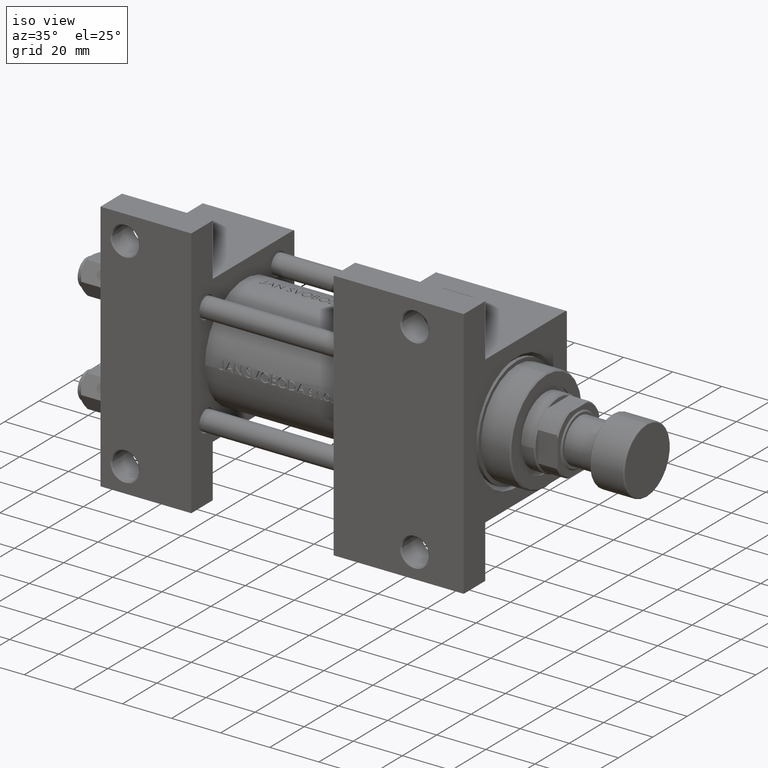
[diagram: clean part render]
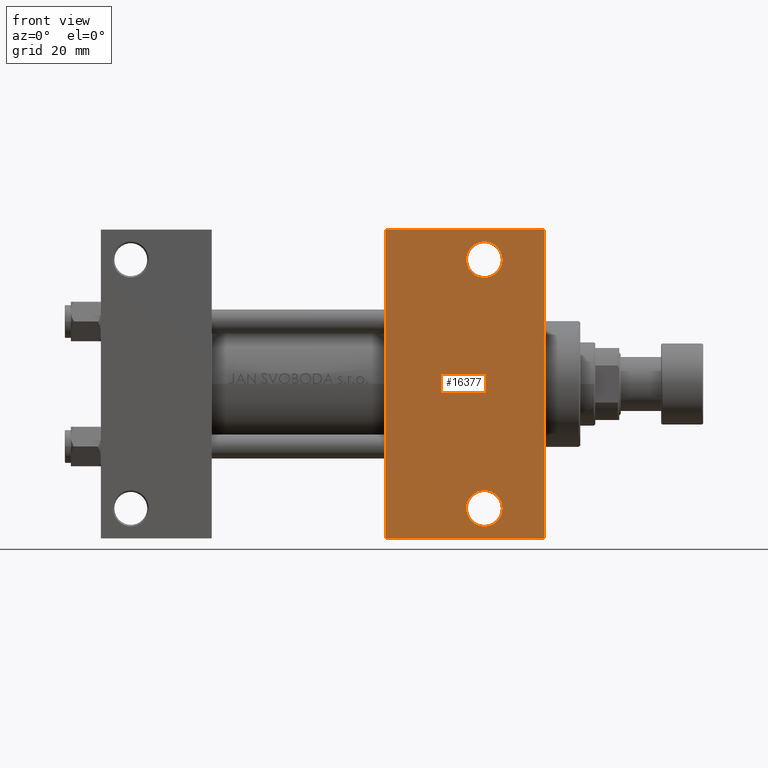
[diagram: tour spotlight — one face highlighted and labeled with its STEP entity id]
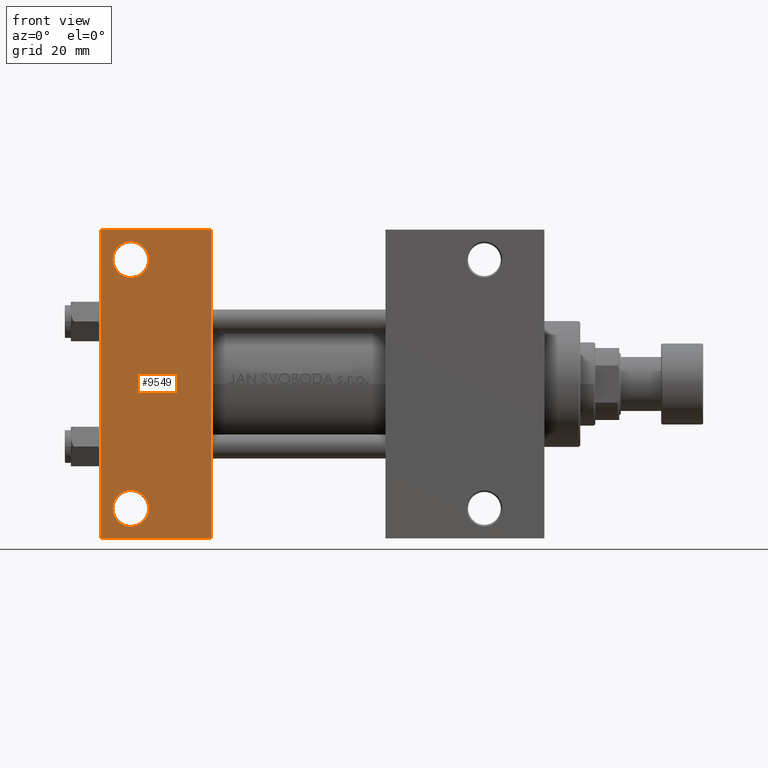
[diagram: tour spotlight — one face highlighted and labeled with its STEP entity id]
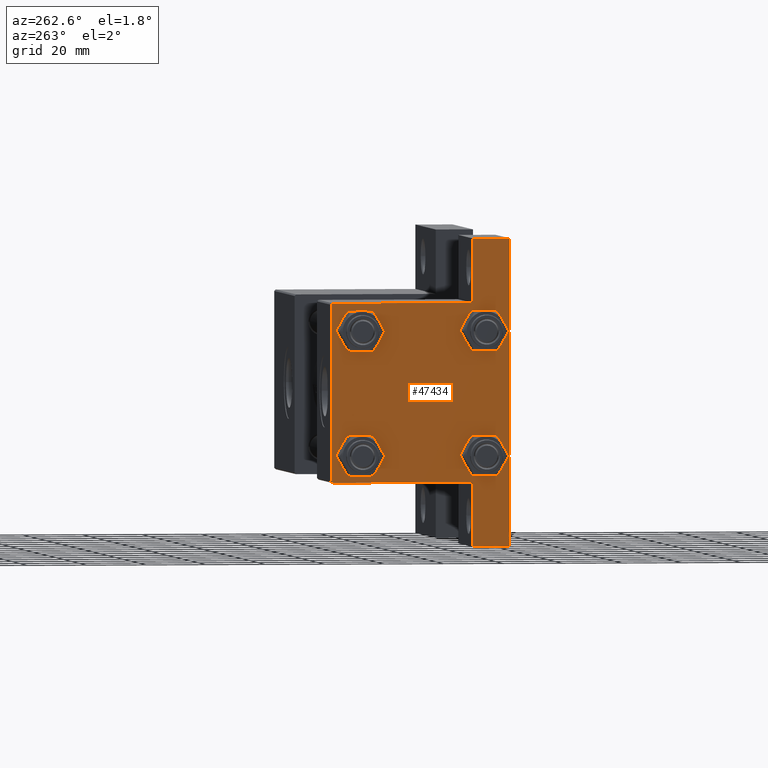
[diagram: tour spotlight — one face highlighted and labeled with its STEP entity id]
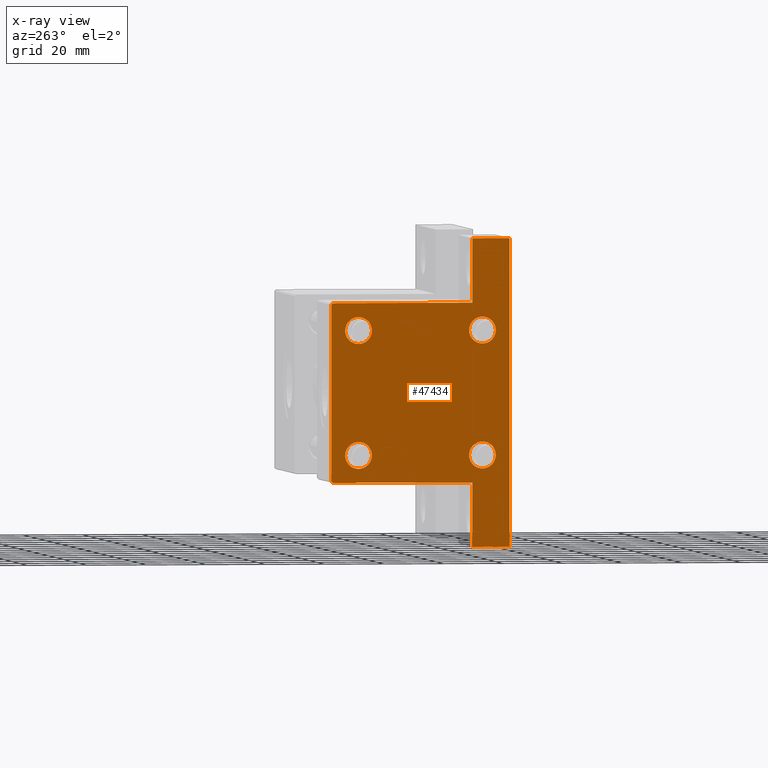
[diagram: x-ray of the same camera — body ghosted, this tour face saturated]
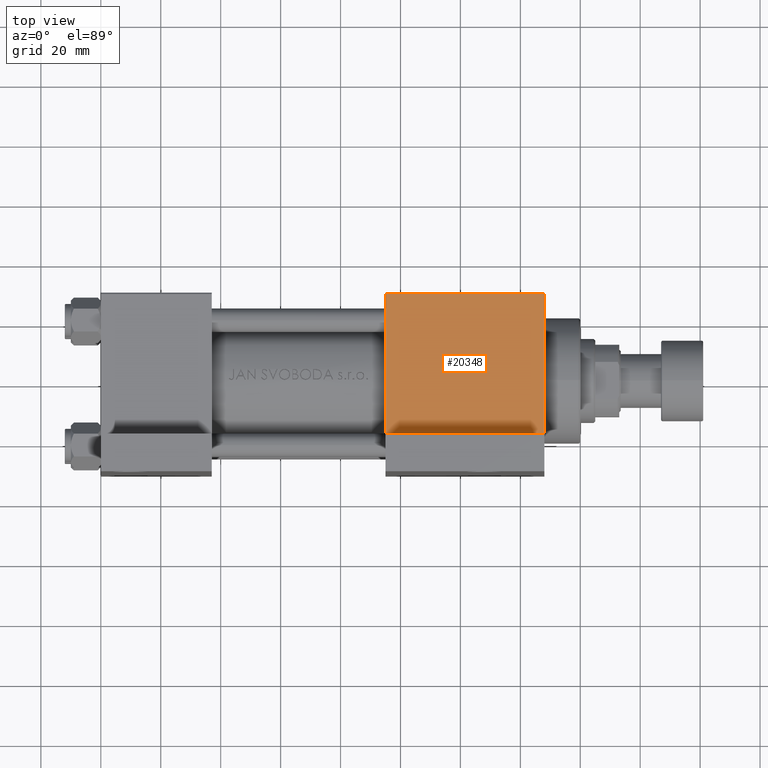
[diagram: tour spotlight — one face highlighted and labeled with its STEP entity id]
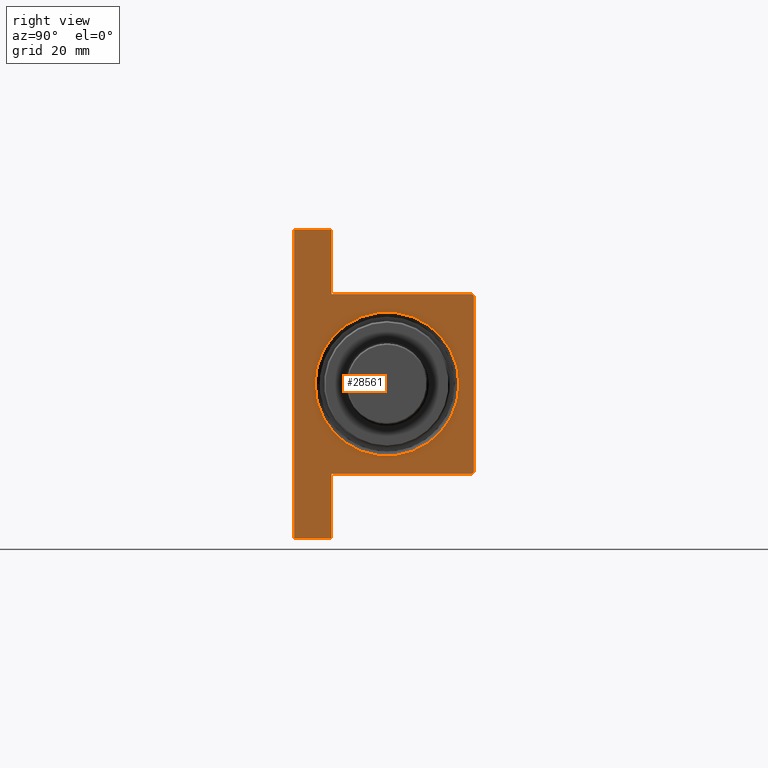
[diagram: tour spotlight — one face highlighted and labeled with its STEP entity id]
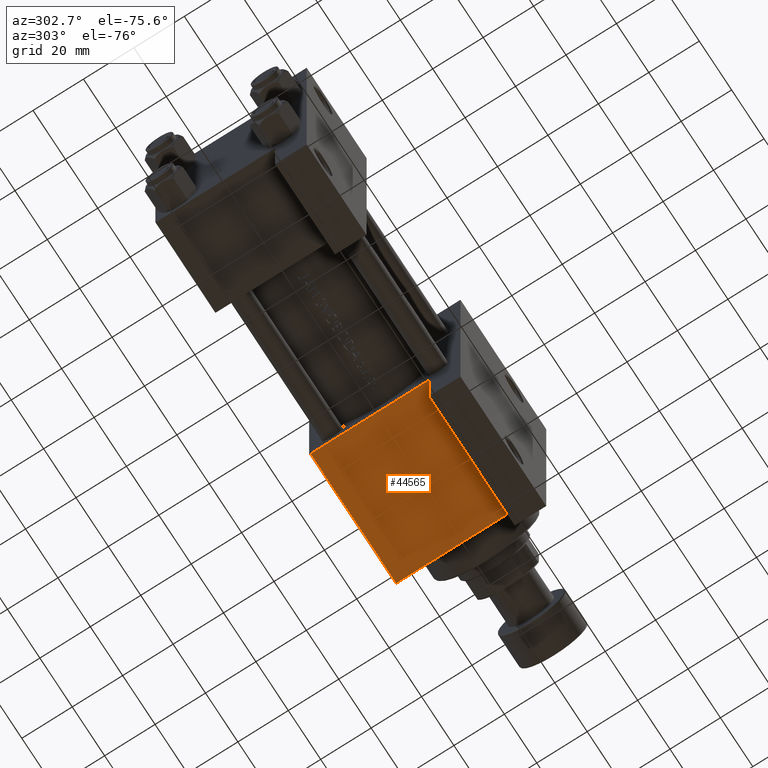
[diagram: tour spotlight — one face highlighted and labeled with its STEP entity id]
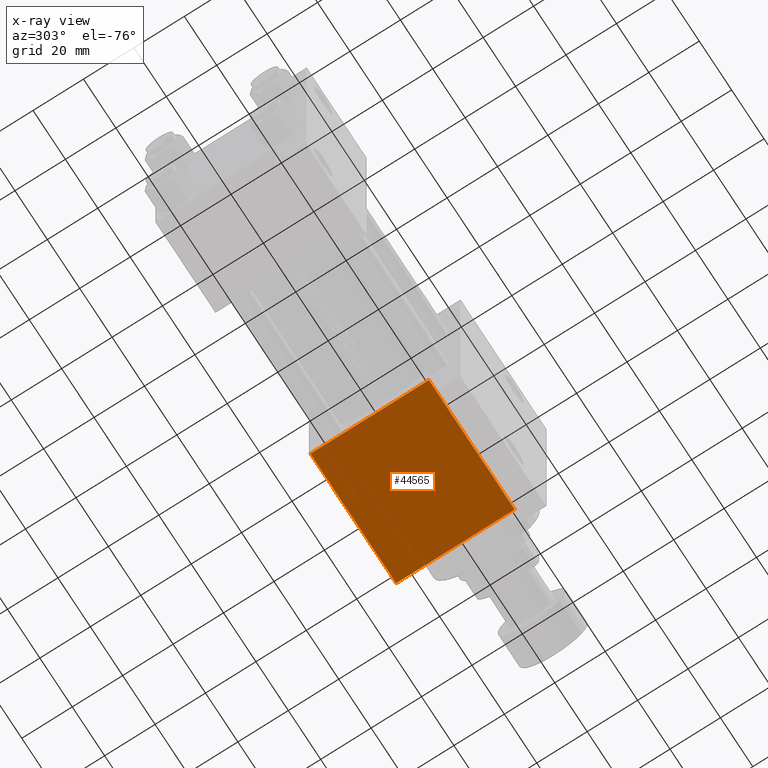
[diagram: x-ray of the same camera — body ghosted, this tour face saturated]
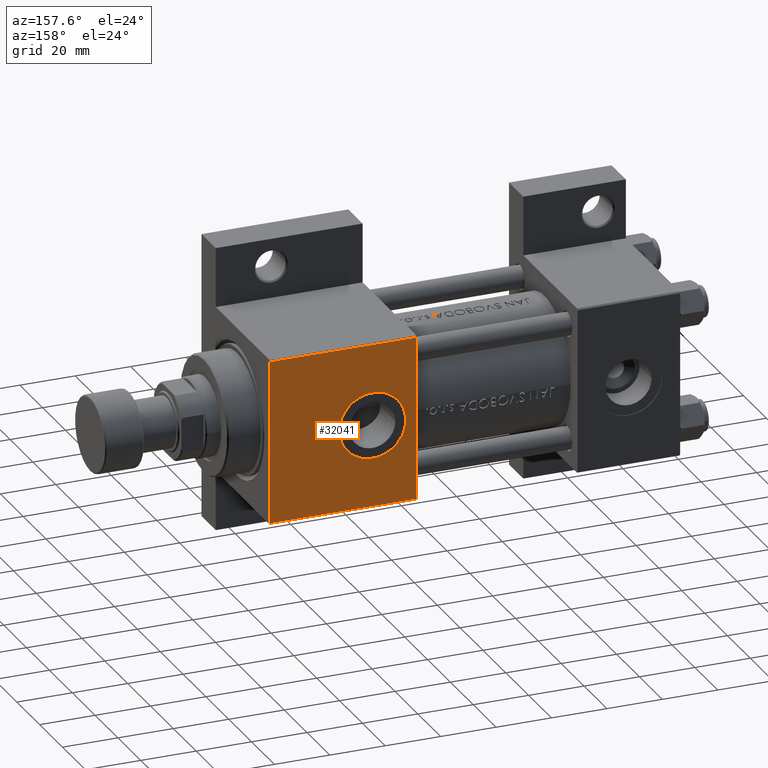
[diagram: tour spotlight — one face highlighted and labeled with its STEP entity id]
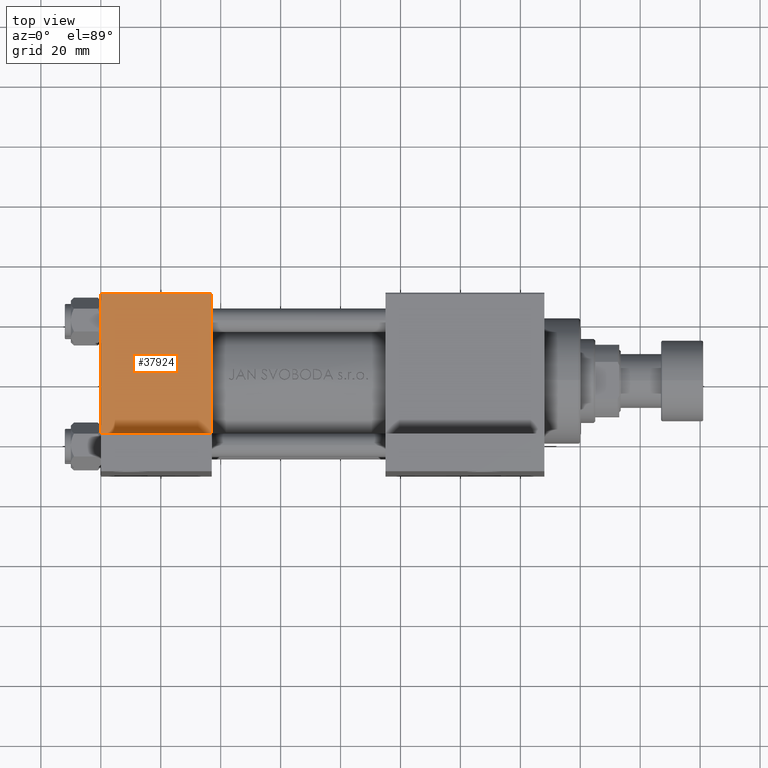
[diagram: tour spotlight — one face highlighted and labeled with its STEP entity id]
A machine part: a face-by-face anatomy tour. The part has 1104 B-rep faces; the first image is the clean iso view, then the 8 largest visible faces are spotlighted one at a time (largest first), each with its STEP entity span.

Face 1 — front view, entity #16377. In plain terms, the highlighted planar face has unit normal (0, -1, -0).
Definition (entity closure, byte-faithful):
#1604 = AXIS2_PLACEMENT_3D ( 'NONE', #8471, #26239, #33771 ) ;
#2140 = CARTESIAN_POINT ( 'NONE',  ( 128.0000000000000000, 41.49999999999999289, -29.99999999999999289 ) ) ;
#2278 = DIRECTION ( 'NONE',  ( 0.000000000000000000, 1.000000000000000000, 0.000000000000000000 ) ) ;
#4718 = VECTOR ( 'NONE', #4914, 1000.000000000000000 ) ;
#4914 = DIRECTION ( 'NONE',  ( 0.000000000000000000, -1.000000000000000000, -1.156482317317871478E-16 ) ) ;
#5068 = DIRECTION ( 'NONE',  ( -0.000000000000000000, -1.156482317317871478E-16, 1.000000000000000000 ) ) ;
#5266 = LINE ( 'NONE', #23737, #39991 ) ;
#6525 = LINE ( 'NONE', #35725, #31455 ) ;
#7785 = VERTEX_POINT ( 'NONE', #20218 ) ;
#8068 = EDGE_CURVE ( 'NONE', #39612, #48022, #17044, .T. ) ;
#8200 = LINE ( 'NONE', #23034, #17178 ) ;
#8471 = CARTESIAN_POINT ( 'NONE',  ( 148.0000000000000000, 30.00000000000000000, -29.99999999999999289 ) ) ;
#8980 = ORIENTED_EDGE ( 'NONE', *, *, #8068, .T. ) ;
#9446 = AXIS2_PLACEMENT_3D ( 'NONE', #42798, #24806, #24323 ) ;
#10190 = DIRECTION ( 'NONE',  ( 0.000000000000000000, -1.000000000000000000, -1.156482317317871478E-16 ) ) ;
#10508 = CARTESIAN_POINT ( 'NONE',  ( 128.0000000000000000, -41.49999999999999289, -30.00000000000000000 ) ) ;
#10924 = EDGE_LOOP ( 'NONE', ( #8980, #39905 ) ) ;
#12710 = CARTESIAN_POINT ( 'NONE',  ( 95.00000000000000000, 30.00000000000000000, -29.99999999999999289 ) ) ;
#13159 = AXIS2_PLACEMENT_3D ( 'NONE', #2140, #5068, #16504 ) ;
#13880 = CARTESIAN_POINT ( 'NONE',  ( 94.99999999999998579, -51.50000000000000711, -29.99999999999999645 ) ) ;
#14833 = VERTEX_POINT ( 'NONE', #47746 ) ;
#15094 = EDGE_LOOP ( 'NONE', ( #35368, #22000 ) ) ;
#15129 = AXIS2_PLACEMENT_3D ( 'NONE', #10508, #33105, #44273 ) ;
#16377 = ADVANCED_FACE ( 'NONE', ( #30596, #38131, #26480 ), #23056, .T. ) ;
#16504 = DIRECTION ( 'NONE',  ( 0.000000000000000000, 1.000000000000000000, 0.000000000000000000 ) ) ;
#16758 = CARTESIAN_POINT ( 'NONE',  ( 133.9995000000000118, -41.49999999999999289, -30.00000000000000000 ) ) ;
#17011 = EDGE_CURVE ( 'NONE', #45514, #19906, #38219, .T. ) ;
#17044 = CIRCLE ( 'NONE', #13159, 5.999499999999990507 ) ;
#17178 = VECTOR ( 'NONE', #37869, 1000.000000000000000 ) ;
#17587 = EDGE_CURVE ( 'NONE', #45514, #18301, #8200, .T. ) ;
#18181 = EDGE_LOOP ( 'NONE', ( #31921, #42032, #39426, #24637 ) ) ;
#18301 = VERTEX_POINT ( 'NONE', #23585 ) ;
#18395 = EDGE_CURVE ( 'NONE', #7785, #20842, #42813, .T. ) ;
#19601 = DIRECTION ( 'NONE',  ( -1.000000000000000000, -0.000000000000000000, -0.000000000000000000 ) ) ;
#19906 = VERTEX_POINT ( 'NONE', #13880 ) ;
#20218 = CARTESIAN_POINT ( 'NONE',  ( 122.0004999999999882, -41.49999999999999289, -30.00000000000000000 ) ) ;
#20740 = CARTESIAN_POINT ( 'NONE',  ( 95.00000000000000000, 51.50000000000000711, -29.99999999999999645 ) ) ;
#20810 = CIRCLE ( 'NONE', #22324, 5.999499999999990507 ) ;
#20842 = VERTEX_POINT ( 'NONE', #16758 ) ;
#22000 = ORIENTED_EDGE ( 'NONE', *, *, #30591, .T. ) ;
#22324 = AXIS2_PLACEMENT_3D ( 'NONE', #39006, #46541, #2278 ) ;
#23034 = CARTESIAN_POINT ( 'NONE',  ( 95.00000000000000000, 51.50000000000000711, -29.99999999999999645 ) ) ;
#23056 = PLANE ( 'NONE',  #1604 ) ;
#23585 = CARTESIAN_POINT ( 'NONE',  ( 148.0000000000000000, 51.49999999999999289, -29.99999999999999645 ) ) ;
#23737 = CARTESIAN_POINT ( 'NONE',  ( 94.99999999999998579, -51.50000000000000711, -29.99999999999999645 ) ) ;
#24323 = DIRECTION ( 'NONE',  ( 0.000000000000000000, 1.000000000000000000, 0.000000000000000000 ) ) ;
#24637 = ORIENTED_EDGE ( 'NONE', *, *, #28088, .T. ) ;
#24806 = DIRECTION ( 'NONE',  ( -0.000000000000000000, -1.156482317317871478E-16, 1.000000000000000000 ) ) ;
#26239 = DIRECTION ( 'NONE',  ( 0.000000000000000000, 1.156482317317871478E-16, -1.000000000000000000 ) ) ;
#26480 = FACE_OUTER_BOUND ( 'NONE', #18181, .T. ) ;
#28088 = EDGE_CURVE ( 'NONE', #14833, #19906, #5266, .T. ) ;
#30591 = EDGE_CURVE ( 'NONE', #20842, #7785, #35345, .T. ) ;
#30596 = FACE_BOUND ( 'NONE', #10924, .T. ) ;
#30956 = EDGE_CURVE ( 'NONE', #18301, #14833, #6525, .T. ) ;
#31455 = VECTOR ( 'NONE', #10190, 1000.000000000000000 ) ;
#31921 = ORIENTED_EDGE ( 'NONE', *, *, #17011, .F. ) ;
#33105 = DIRECTION ( 'NONE',  ( -0.000000000000000000, -1.156482317317871478E-16, 1.000000000000000000 ) ) ;
#33771 = DIRECTION ( 'NONE',  ( 0.000000000000000000, 1.000000000000000000, 1.156482317317871478E-16 ) ) ;
#35345 = CIRCLE ( 'NONE', #15129, 5.999500000000018929 ) ;
#35368 = ORIENTED_EDGE ( 'NONE', *, *, #18395, .T. ) ;
#35725 = CARTESIAN_POINT ( 'NONE',  ( 148.0000000000000000, 30.00000000000000000, -29.99999999999999289 ) ) ;
#37433 = EDGE_CURVE ( 'NONE', #48022, #39612, #20810, .T. ) ;
#37869 = DIRECTION ( 'NONE',  ( 1.000000000000000000, -2.618450529776313247E-16, 0.000000000000000000 ) ) ;
#38131 = FACE_BOUND ( 'NONE', #15094, .T. ) ;
#38219 = LINE ( 'NONE', #12710, #4718 ) ;
#39006 = CARTESIAN_POINT ( 'NONE',  ( 128.0000000000000000, 41.49999999999999289, -29.99999999999999289 ) ) ;
#39426 = ORIENTED_EDGE ( 'NONE', *, *, #30956, .T. ) ;
#39612 = VERTEX_POINT ( 'NONE', #43171 ) ;
#39905 = ORIENTED_EDGE ( 'NONE', *, *, #37433, .T. ) ;
#39991 = VECTOR ( 'NONE', #19601, 1000.000000000000000 ) ;
#42032 = ORIENTED_EDGE ( 'NONE', *, *, #17587, .T. ) ;
#42798 = CARTESIAN_POINT ( 'NONE',  ( 128.0000000000000000, -41.49999999999999289, -30.00000000000000000 ) ) ;
#42813 = CIRCLE ( 'NONE', #9446, 5.999500000000018929 ) ;
#43171 = CARTESIAN_POINT ( 'NONE',  ( 122.0005000000000166, 41.49999999999999289, -29.99999999999999289 ) ) ;
#44273 = DIRECTION ( 'NONE',  ( 0.000000000000000000, 1.000000000000000000, 0.000000000000000000 ) ) ;
#45514 = VERTEX_POINT ( 'NONE', #20740 ) ;
#46541 = DIRECTION ( 'NONE',  ( -0.000000000000000000, -1.156482317317871478E-16, 1.000000000000000000 ) ) ;
#47746 = CARTESIAN_POINT ( 'NONE',  ( 148.0000000000000000, -51.50000000000000711, -29.99999999999999645 ) ) ;
#47945 = CARTESIAN_POINT ( 'NONE',  ( 133.9994999999999834, 41.49999999999999289, -29.99999999999999289 ) ) ;
#48022 = VERTEX_POINT ( 'NONE', #47945 ) ;

Face 2 — front view, entity #9549. In plain terms, the highlighted planar face has unit normal (0, -1, -0).
Definition (entity closure, byte-faithful):
#631 = EDGE_CURVE ( 'NONE', #45929, #41785, #28489, .T. ) ;
#887 = EDGE_LOOP ( 'NONE', ( #30150, #36711 ) ) ;
#2609 = EDGE_LOOP ( 'NONE', ( #5089, #20758, #38636, #11697 ) ) ;
#3017 = CIRCLE ( 'NONE', #7700, 5.999499999999990507 ) ;
#4626 = AXIS2_PLACEMENT_3D ( 'NONE', #36811, #37525, #14448 ) ;
#5008 = EDGE_CURVE ( 'NONE', #45929, #39895, #35910, .T. ) ;
#5089 = ORIENTED_EDGE ( 'NONE', *, *, #631, .F. ) ;
#6002 = DIRECTION ( 'NONE',  ( -0.000000000000000000, -1.156482317317871725E-16, 1.000000000000000000 ) ) ;
#6283 = CARTESIAN_POINT ( 'NONE',  ( 15.99950000000001715, -41.50000000000000711, -30.00000000000000711 ) ) ;
#7700 = AXIS2_PLACEMENT_3D ( 'NONE', #16699, #6002, #39780 ) ;
#7838 = VERTEX_POINT ( 'NONE', #35044 ) ;
#8090 = PLANE ( 'NONE',  #4626 ) ;
#8522 = EDGE_CURVE ( 'NONE', #7838, #12424, #33339, .T. ) ;
#8918 = CIRCLE ( 'NONE', #14374, 5.999500000000018929 ) ;
#9549 = ADVANCED_FACE ( 'NONE', ( #22222, #18812, #41393 ), #8090, .T. ) ;
#9992 = CARTESIAN_POINT ( 'NONE',  ( 3.977209754999747208E-16, -51.49999999999999289, -29.99999999999999289 ) ) ;
#10039 = LINE ( 'NONE', #35816, #46934 ) ;
#10354 = DIRECTION ( 'NONE',  ( 0.000000000000000000, 1.000000000000000000, 0.000000000000000000 ) ) ;
#10432 = ORIENTED_EDGE ( 'NONE', *, *, #30628, .T. ) ;
#11697 = ORIENTED_EDGE ( 'NONE', *, *, #13591, .T. ) ;
#12406 = VECTOR ( 'NONE', #46594, 1000.000000000000000 ) ;
#12424 = VERTEX_POINT ( 'NONE', #35228 ) ;
#13430 = DIRECTION ( 'NONE',  ( 0.000000000000000000, -1.000000000000000000, -1.156482317317871725E-16 ) ) ;
#13591 = EDGE_CURVE ( 'NONE', #18087, #41785, #42199, .T. ) ;
#14374 = AXIS2_PLACEMENT_3D ( 'NONE', #23346, #38176, #19218 ) ;
#14448 = DIRECTION ( 'NONE',  ( 0.000000000000000000, 1.000000000000000000, 1.156482317317871725E-16 ) ) ;
#16699 = CARTESIAN_POINT ( 'NONE',  ( 9.999999999999998224, 41.49999999999997868, -30.00000000000000000 ) ) ;
#16936 = CARTESIAN_POINT ( 'NONE',  ( 3.977209754999747208E-16, -51.49999999999999289, -29.99999999999999289 ) ) ;
#17179 = DIRECTION ( 'NONE',  ( -0.000000000000000000, -1.156482317317871725E-16, 1.000000000000000000 ) ) ;
#17566 = CARTESIAN_POINT ( 'NONE',  ( 37.00000000000000000, -51.50000000000000000, -29.99999999999999289 ) ) ;
#17619 = DIRECTION ( 'NONE',  ( -0.000000000000000000, -1.156482317317871725E-16, 1.000000000000000000 ) ) ;
#17858 = DIRECTION ( 'NONE',  ( 0.000000000000000000, 1.000000000000000000, 0.000000000000000000 ) ) ;
#18087 = VERTEX_POINT ( 'NONE', #17566 ) ;
#18812 = FACE_BOUND ( 'NONE', #30100, .T. ) ;
#19218 = DIRECTION ( 'NONE',  ( 0.000000000000000000, 1.000000000000000000, 0.000000000000000000 ) ) ;
#20008 = VECTOR ( 'NONE', #43194, 1000.000000000000000 ) ;
#20758 = ORIENTED_EDGE ( 'NONE', *, *, #5008, .T. ) ;
#21637 = CARTESIAN_POINT ( 'NONE',  ( 1.301158300671771401E-14, 51.50000000000000711, -30.00000000000001421 ) ) ;
#22222 = FACE_BOUND ( 'NONE', #887, .T. ) ;
#23346 = CARTESIAN_POINT ( 'NONE',  ( 9.999999999999998224, -41.50000000000000711, -30.00000000000000711 ) ) ;
#25103 = DIRECTION ( 'NONE',  ( 0.000000000000000000, -1.000000000000000000, -1.156482317317871725E-16 ) ) ;
#26687 = EDGE_CURVE ( 'NONE', #39895, #18087, #10039, .T. ) ;
#28489 = LINE ( 'NONE', #43307, #36954 ) ;
#29033 = CARTESIAN_POINT ( 'NONE',  ( 9.999999999999998224, -41.50000000000000711, -30.00000000000000711 ) ) ;
#30100 = EDGE_LOOP ( 'NONE', ( #43956, #10432 ) ) ;
#30150 = ORIENTED_EDGE ( 'NONE', *, *, #8522, .T. ) ;
#30628 = EDGE_CURVE ( 'NONE', #42013, #46340, #8918, .T. ) ;
#32179 = CARTESIAN_POINT ( 'NONE',  ( 37.00000000000001421, 51.50000000000000000, -30.00000000000001421 ) ) ;
#33339 = CIRCLE ( 'NONE', #34087, 5.999499999999990507 ) ;
#34087 = AXIS2_PLACEMENT_3D ( 'NONE', #46825, #17179, #10354 ) ;
#35044 = CARTESIAN_POINT ( 'NONE',  ( 4.000500000000007716, 41.49999999999997868, -30.00000000000000000 ) ) ;
#35228 = CARTESIAN_POINT ( 'NONE',  ( 15.99949999999998873, 41.49999999999997868, -30.00000000000000000 ) ) ;
#35329 = CARTESIAN_POINT ( 'NONE',  ( 4.000499999999980183, -41.50000000000000711, -30.00000000000000711 ) ) ;
#35816 = CARTESIAN_POINT ( 'NONE',  ( 37.00000000000000000, 29.99999999999999289, -30.00000000000000000 ) ) ;
#35910 = LINE ( 'NONE', #42464, #20008 ) ;
#36711 = ORIENTED_EDGE ( 'NONE', *, *, #41332, .T. ) ;
#36811 = CARTESIAN_POINT ( 'NONE',  ( 37.00000000000000000, 29.99999999999999289, -30.00000000000000000 ) ) ;
#36954 = VECTOR ( 'NONE', #13430, 1000.000000000000000 ) ;
#37525 = DIRECTION ( 'NONE',  ( 0.000000000000000000, 1.156482317317871725E-16, -1.000000000000000000 ) ) ;
#38176 = DIRECTION ( 'NONE',  ( -0.000000000000000000, -1.156482317317871725E-16, 1.000000000000000000 ) ) ;
#38636 = ORIENTED_EDGE ( 'NONE', *, *, #26687, .T. ) ;
#39780 = DIRECTION ( 'NONE',  ( 0.000000000000000000, 1.000000000000000000, 0.000000000000000000 ) ) ;
#39895 = VERTEX_POINT ( 'NONE', #32179 ) ;
#41332 = EDGE_CURVE ( 'NONE', #12424, #7838, #3017, .T. ) ;
#41393 = FACE_OUTER_BOUND ( 'NONE', #2609, .T. ) ;
#41785 = VERTEX_POINT ( 'NONE', #9992 ) ;
#42013 = VERTEX_POINT ( 'NONE', #6283 ) ;
#42199 = LINE ( 'NONE', #16936, #12406 ) ;
#42464 = CARTESIAN_POINT ( 'NONE',  ( 1.301158300671771401E-14, 51.50000000000000711, -30.00000000000001421 ) ) ;
#42558 = AXIS2_PLACEMENT_3D ( 'NONE', #29033, #17619, #17858 ) ;
#43194 = DIRECTION ( 'NONE',  ( 1.000000000000000000, -1.875376730785737473E-16, 0.000000000000000000 ) ) ;
#43307 = CARTESIAN_POINT ( 'NONE',  ( 0.000000000000000000, 29.99999999999999289, -30.00000000000000000 ) ) ;
#43956 = ORIENTED_EDGE ( 'NONE', *, *, #45230, .T. ) ;
#45230 = EDGE_CURVE ( 'NONE', #46340, #42013, #45621, .T. ) ;
#45621 = CIRCLE ( 'NONE', #42558, 5.999500000000018929 ) ;
#45929 = VERTEX_POINT ( 'NONE', #21637 ) ;
#46340 = VERTEX_POINT ( 'NONE', #35329 ) ;
#46594 = DIRECTION ( 'NONE',  ( -1.000000000000000000, 1.875376730785737473E-16, -0.000000000000000000 ) ) ;
#46825 = CARTESIAN_POINT ( 'NONE',  ( 9.999999999999998224, 41.49999999999997868, -30.00000000000000000 ) ) ;
#46934 = VECTOR ( 'NONE', #25103, 1000.000000000000000 ) ;

Face 3 — auxiliary view, entity #47434. An x-ray twin of the same camera follows (body ghosted, this face saturated) — the face is partly hidden behind the body. In plain terms, the highlighted planar face has unit normal (-1, 0, -0).
Definition (entity closure, byte-faithful):
#5 = CIRCLE ( 'NONE', #20213, 4.500000000000017764 ) ;
#631 = EDGE_CURVE ( 'NONE', #45929, #41785, #28489, .T. ) ;
#2297 = VERTEX_POINT ( 'NONE', #8694 ) ;
#2607 = DIRECTION ( 'NONE',  ( -1.000000000000000000, 0.000000000000000000, -0.000000000000000000 ) ) ;
#3008 = ORIENTED_EDGE ( 'NONE', *, *, #5912, .T. ) ;
#3467 = ORIENTED_EDGE ( 'NONE', *, *, #9261, .T. ) ;
#3602 = VERTEX_POINT ( 'NONE', #40599 ) ;
#3799 = AXIS2_PLACEMENT_3D ( 'NONE', #18887, #7705, #11835 ) ;
#3878 = VECTOR ( 'NONE', #15921, 1000.000000000000114 ) ;
#4339 = CIRCLE ( 'NONE', #41591, 4.500000000000017764 ) ;
#4416 = ORIENTED_EDGE ( 'NONE', *, *, #37162, .T. ) ;
#4431 = AXIS2_PLACEMENT_3D ( 'NONE', #23228, #11825, #20084 ) ;
#4485 = VERTEX_POINT ( 'NONE', #44367 ) ;
#4666 = VERTEX_POINT ( 'NONE', #46487 ) ;
#4895 = CARTESIAN_POINT ( 'NONE',  ( 0.000000000000000000, 20.84999999999999787, -20.85000000000000142 ) ) ;
#4969 = EDGE_CURVE ( 'NONE', #33741, #3602, #24964, .T. ) ;
#5040 = DIRECTION ( 'NONE',  ( 1.000000000000000000, -0.000000000000000000, 0.000000000000000000 ) ) ;
#5242 = CIRCLE ( 'NONE', #46406, 4.500000000000017764 ) ;
#5289 = DIRECTION ( 'NONE',  ( 0.000000000000000000, 0.000000000000000000, 1.000000000000000000 ) ) ;
#5357 = CARTESIAN_POINT ( 'NONE',  ( 1.301158300671771243E-14, 51.50000000000000711, -17.49999999999999645 ) ) ;
#5384 = CARTESIAN_POINT ( 'NONE',  ( 3.977209754999747208E-16, -51.49999999999999289, -17.49999999999999645 ) ) ;
#5808 = VECTOR ( 'NONE', #26042, 1000.000000000000000 ) ;
#5912 = EDGE_CURVE ( 'NONE', #27201, #12946, #40241, .T. ) ;
#6479 = DIRECTION ( 'NONE',  ( -2.966638294954184077E-16, -1.000000000000000000, 0.000000000000000000 ) ) ;
#7705 = DIRECTION ( 'NONE',  ( 1.000000000000000000, -0.000000000000000000, 0.000000000000000000 ) ) ;
#7823 = VERTEX_POINT ( 'NONE', #5384 ) ;
#8074 = CARTESIAN_POINT ( 'NONE',  ( 0.000000000000000000, -20.84999999999999076, -16.34999999999998721 ) ) ;
#8246 = ORIENTED_EDGE ( 'NONE', *, *, #10110, .F. ) ;
#8298 = EDGE_CURVE ( 'NONE', #44559, #2297, #27898, .T. ) ;
#8694 = CARTESIAN_POINT ( 'NONE',  ( 0.000000000000000000, -20.84999999999999076, -25.35000000000002274 ) ) ;
#9170 = CIRCLE ( 'NONE', #43346, 4.500000000000017764 ) ;
#9261 = EDGE_CURVE ( 'NONE', #33099, #44861, #11343, .T. ) ;
#9778 = CARTESIAN_POINT ( 'NONE',  ( 0.000000000000000000, 29.99999999999999289, 29.50000000000000000 ) ) ;
#9923 = PLANE ( 'NONE',  #30814 ) ;
#9992 = CARTESIAN_POINT ( 'NONE',  ( 3.977209754999747208E-16, -51.49999999999999289, -29.99999999999999289 ) ) ;
#10015 = VERTEX_POINT ( 'NONE', #36163 ) ;
#10110 = EDGE_CURVE ( 'NONE', #7823, #41785, #17931, .T. ) ;
#10633 = FACE_BOUND ( 'NONE', #12825, .T. ) ;
#11170 = EDGE_LOOP ( 'NONE', ( #33244, #12772, #43117, #3467, #27583, #47729, #30481, #47468, #8246, #37257 ) ) ;
#11343 = LINE ( 'NONE', #12043, #3878 ) ;
#11825 = DIRECTION ( 'NONE',  ( 1.000000000000000000, -0.000000000000000000, 0.000000000000000000 ) ) ;
#11835 = DIRECTION ( 'NONE',  ( 0.000000000000000000, 0.000000000000000000, 1.000000000000000000 ) ) ;
#12025 = ORIENTED_EDGE ( 'NONE', *, *, #43495, .T. ) ;
#12043 = CARTESIAN_POINT ( 'NONE',  ( 0.000000000000000000, 29.74999999999999645, 29.74999999999999645 ) ) ;
#12772 = ORIENTED_EDGE ( 'NONE', *, *, #19610, .T. ) ;
#12825 = EDGE_LOOP ( 'NONE', ( #12025, #33614 ) ) ;
#12946 = VERTEX_POINT ( 'NONE', #31458 ) ;
#13316 = EDGE_LOOP ( 'NONE', ( #20530, #26800 ) ) ;
#13321 = LINE ( 'NONE', #42476, #42401 ) ;
#13430 = DIRECTION ( 'NONE',  ( 0.000000000000000000, -1.000000000000000000, -1.156482317317871725E-16 ) ) ;
#13459 = VERTEX_POINT ( 'NONE', #45601 ) ;
#13649 = LINE ( 'NONE', #43772, #41718 ) ;
#13743 = CARTESIAN_POINT ( 'NONE',  ( 0.000000000000000000, -20.84999999999999076, 25.35000000000002274 ) ) ;
#14294 = LINE ( 'NONE', #29127, #40154 ) ;
#14896 = CARTESIAN_POINT ( 'NONE',  ( 0.000000000000000000, 20.84999999999999787, 20.85000000000000142 ) ) ;
#15921 = DIRECTION ( 'NONE',  ( 0.000000000000000000, 0.7071067811865474617, -0.7071067811865474617 ) ) ;
#15938 = CARTESIAN_POINT ( 'NONE',  ( -0.000000000000000000, -29.74999999999999645, 29.74999999999999645 ) ) ;
#16468 = VECTOR ( 'NONE', #41227, 1000.000000000000114 ) ;
#17456 = DIRECTION ( 'NONE',  ( -0.000000000000000000, 0.000000000000000000, 1.000000000000000000 ) ) ;
#17931 = LINE ( 'NONE', #25699, #44984 ) ;
#18887 = CARTESIAN_POINT ( 'NONE',  ( 0.000000000000000000, -20.84999999999999076, -20.85000000000000497 ) ) ;
#19610 = EDGE_CURVE ( 'NONE', #13459, #10015, #45588, .T. ) ;
#20084 = DIRECTION ( 'NONE',  ( 0.000000000000000000, 0.000000000000000000, 1.000000000000000000 ) ) ;
#20102 = DIRECTION ( 'NONE',  ( 1.000000000000000000, -0.000000000000000000, 0.000000000000000000 ) ) ;
#20213 = AXIS2_PLACEMENT_3D ( 'NONE', #14896, #29730, #21477 ) ;
#20375 = DIRECTION ( 'NONE',  ( 0.000000000000000000, 0.000000000000000000, -1.000000000000000000 ) ) ;
#20530 = ORIENTED_EDGE ( 'NONE', *, *, #8298, .T. ) ;
#20748 = LINE ( 'NONE', #42860, #20848 ) ;
#20848 = VECTOR ( 'NONE', #39923, 1000.000000000000000 ) ;
#21046 = DIRECTION ( 'NONE',  ( 0.000000000000000000, 0.000000000000000000, 1.000000000000000000 ) ) ;
#21118 = CARTESIAN_POINT ( 'NONE',  ( 0.000000000000000000, 0.000000000000000000, 0.000000000000000000 ) ) ;
#21325 = CARTESIAN_POINT ( 'NONE',  ( 0.000000000000000000, 20.84999999999999787, 20.85000000000000142 ) ) ;
#21389 = VERTEX_POINT ( 'NONE', #29801 ) ;
#21477 = DIRECTION ( 'NONE',  ( 0.000000000000000000, 0.000000000000000000, 1.000000000000000000 ) ) ;
#21637 = CARTESIAN_POINT ( 'NONE',  ( 1.301158300671771401E-14, 51.50000000000000711, -30.00000000000001421 ) ) ;
#21928 = LINE ( 'NONE', #22163, #5808 ) ;
#22051 = DIRECTION ( 'NONE',  ( 0.000000000000000000, -1.734723475976807094E-16, -1.000000000000000000 ) ) ;
#22163 = CARTESIAN_POINT ( 'NONE',  ( 3.977209754999743757E-16, -51.49999999999998579, -17.49999999999999645 ) ) ;
#22925 = EDGE_CURVE ( 'NONE', #4666, #47606, #24345, .T. ) ;
#23228 = CARTESIAN_POINT ( 'NONE',  ( 0.000000000000000000, 20.84999999999999787, -20.85000000000000142 ) ) ;
#24345 = CIRCLE ( 'NONE', #44490, 4.500000000000017764 ) ;
#24964 = LINE ( 'NONE', #46120, #34755 ) ;
#25458 = FACE_BOUND ( 'NONE', #13316, .T. ) ;
#25699 = CARTESIAN_POINT ( 'NONE',  ( 3.977209754999747208E-16, -51.49999999999998579, 25.29310692155925366 ) ) ;
#26042 = DIRECTION ( 'NONE',  ( 5.173446966594771078E-17, -1.000000000000000000, 0.000000000000000000 ) ) ;
#26332 = VERTEX_POINT ( 'NONE', #35869 ) ;
#26800 = ORIENTED_EDGE ( 'NONE', *, *, #30136, .T. ) ;
#27201 = VERTEX_POINT ( 'NONE', #13743 ) ;
#27583 = ORIENTED_EDGE ( 'NONE', *, *, #34136, .T. ) ;
#27898 = CIRCLE ( 'NONE', #3799, 4.500000000000017764 ) ;
#28489 = LINE ( 'NONE', #43307, #36954 ) ;
#29107 = FACE_BOUND ( 'NONE', #34047, .T. ) ;
#29127 = CARTESIAN_POINT ( 'NONE',  ( 1.301158300671771401E-14, 51.50000000000001421, 25.29310692155923590 ) ) ;
#29730 = DIRECTION ( 'NONE',  ( 1.000000000000000000, -0.000000000000000000, 0.000000000000000000 ) ) ;
#29801 = CARTESIAN_POINT ( 'NONE',  ( 0.000000000000000000, 20.84999999999999787, 25.35000000000001918 ) ) ;
#30136 = EDGE_CURVE ( 'NONE', #2297, #44559, #4339, .T. ) ;
#30481 = ORIENTED_EDGE ( 'NONE', *, *, #36885, .T. ) ;
#30568 = EDGE_CURVE ( 'NONE', #4485, #7823, #21928, .T. ) ;
#30814 = AXIS2_PLACEMENT_3D ( 'NONE', #21118, #2607, #17456 ) ;
#31458 = CARTESIAN_POINT ( 'NONE',  ( 0.000000000000000000, -20.84999999999999076, 16.34999999999998721 ) ) ;
#31507 = ORIENTED_EDGE ( 'NONE', *, *, #36209, .T. ) ;
#31800 = DIRECTION ( 'NONE',  ( 0.000000000000000000, 0.000000000000000000, 1.000000000000000000 ) ) ;
#31896 = DIRECTION ( 'NONE',  ( 0.000000000000000000, 0.000000000000000000, 1.000000000000000000 ) ) ;
#32456 = DIRECTION ( 'NONE',  ( 1.000000000000000000, -0.000000000000000000, 0.000000000000000000 ) ) ;
#33099 = VERTEX_POINT ( 'NONE', #43384 ) ;
#33244 = ORIENTED_EDGE ( 'NONE', *, *, #37866, .F. ) ;
#33614 = ORIENTED_EDGE ( 'NONE', *, *, #39241, .T. ) ;
#33741 = VERTEX_POINT ( 'NONE', #5357 ) ;
#34047 = EDGE_LOOP ( 'NONE', ( #35401, #31507 ) ) ;
#34136 = EDGE_CURVE ( 'NONE', #44861, #3602, #13321, .T. ) ;
#34755 = VECTOR ( 'NONE', #6479, 1000.000000000000000 ) ;
#34932 = DIRECTION ( 'NONE',  ( 0.000000000000000000, 0.000000000000000000, 1.000000000000000000 ) ) ;
#35401 = ORIENTED_EDGE ( 'NONE', *, *, #22925, .T. ) ;
#35869 = CARTESIAN_POINT ( 'NONE',  ( 0.000000000000000000, 20.84999999999999787, 16.34999999999998366 ) ) ;
#36096 = CARTESIAN_POINT ( 'NONE',  ( 0.000000000000000000, -20.84999999999999076, -20.85000000000000497 ) ) ;
#36150 = DIRECTION ( 'NONE',  ( 1.000000000000000000, -0.000000000000000000, 0.000000000000000000 ) ) ;
#36163 = CARTESIAN_POINT ( 'NONE',  ( 0.000000000000000000, -29.49999999999998579, 29.99999999999999289 ) ) ;
#36209 = EDGE_CURVE ( 'NONE', #47606, #4666, #37037, .T. ) ;
#36885 = EDGE_CURVE ( 'NONE', #33741, #45929, #14294, .T. ) ;
#36954 = VECTOR ( 'NONE', #13430, 1000.000000000000000 ) ;
#37037 = CIRCLE ( 'NONE', #4431, 4.500000000000017764 ) ;
#37162 = EDGE_CURVE ( 'NONE', #12946, #27201, #5242, .T. ) ;
#37257 = ORIENTED_EDGE ( 'NONE', *, *, #30568, .F. ) ;
#37866 = EDGE_CURVE ( 'NONE', #13459, #4485, #13649, .T. ) ;
#38439 = DIRECTION ( 'NONE',  ( 1.000000000000000000, -0.000000000000000000, 0.000000000000000000 ) ) ;
#39241 = EDGE_CURVE ( 'NONE', #26332, #21389, #9170, .T. ) ;
#39923 = DIRECTION ( 'NONE',  ( 0.000000000000000000, -1.000000000000000000, -1.156482317317871725E-16 ) ) ;
#40154 = VECTOR ( 'NONE', #43934, 1000.000000000000000 ) ;
#40241 = CIRCLE ( 'NONE', #40987, 4.500000000000017764 ) ;
#40599 = CARTESIAN_POINT ( 'NONE',  ( 0.000000000000000000, 29.99999999999999289, -17.49999999999999645 ) ) ;
#40750 = CARTESIAN_POINT ( 'NONE',  ( 0.000000000000000000, 20.84999999999999787, -25.35000000000001918 ) ) ;
#40987 = AXIS2_PLACEMENT_3D ( 'NONE', #41982, #5040, #5289 ) ;
#41227 = DIRECTION ( 'NONE',  ( -0.000000000000000000, 0.7071067811865474617, 0.7071067811865474617 ) ) ;
#41591 = AXIS2_PLACEMENT_3D ( 'NONE', #36096, #32456, #21046 ) ;
#41718 = VECTOR ( 'NONE', #47668, 1000.000000000000000 ) ;
#41785 = VERTEX_POINT ( 'NONE', #9992 ) ;
#41982 = CARTESIAN_POINT ( 'NONE',  ( 0.000000000000000000, -20.84999999999999076, 20.85000000000000497 ) ) ;
#42401 = VECTOR ( 'NONE', #20375, 1000.000000000000000 ) ;
#42476 = CARTESIAN_POINT ( 'NONE',  ( 0.000000000000000000, 29.99999999999999289, 30.00000000000000000 ) ) ;
#42860 = CARTESIAN_POINT ( 'NONE',  ( 0.000000000000000000, 29.99999999999999289, 30.00000000000000000 ) ) ;
#43117 = ORIENTED_EDGE ( 'NONE', *, *, #46341, .F. ) ;
#43307 = CARTESIAN_POINT ( 'NONE',  ( 0.000000000000000000, 29.99999999999999289, -30.00000000000000000 ) ) ;
#43346 = AXIS2_PLACEMENT_3D ( 'NONE', #21325, #36150, #31800 ) ;
#43384 = CARTESIAN_POINT ( 'NONE',  ( 0.000000000000000000, 29.49999999999999289, 30.00000000000000000 ) ) ;
#43460 = FACE_BOUND ( 'NONE', #48027, .T. ) ;
#43495 = EDGE_CURVE ( 'NONE', #21389, #26332, #5, .T. ) ;
#43772 = CARTESIAN_POINT ( 'NONE',  ( 0.000000000000000000, -30.00000000000000000, 29.99999999999999289 ) ) ;
#43934 = DIRECTION ( 'NONE',  ( 0.000000000000000000, -1.734723475976807094E-16, -1.000000000000000000 ) ) ;
#44367 = CARTESIAN_POINT ( 'NONE',  ( -7.145701223179007990E-16, -29.99999999999999645, -17.49999999999999645 ) ) ;
#44490 = AXIS2_PLACEMENT_3D ( 'NONE', #4895, #38439, #31896 ) ;
#44559 = VERTEX_POINT ( 'NONE', #8074 ) ;
#44861 = VERTEX_POINT ( 'NONE', #9778 ) ;
#44984 = VECTOR ( 'NONE', #22051, 1000.000000000000000 ) ;
#45588 = LINE ( 'NONE', #15938, #16468 ) ;
#45601 = CARTESIAN_POINT ( 'NONE',  ( 0.000000000000000000, -30.00000000000000000, 29.49999999999999289 ) ) ;
#45929 = VERTEX_POINT ( 'NONE', #21637 ) ;
#46120 = CARTESIAN_POINT ( 'NONE',  ( 1.301158300671771559E-14, 51.50000000000001421, -17.49999999999999645 ) ) ;
#46341 = EDGE_CURVE ( 'NONE', #33099, #10015, #20748, .T. ) ;
#46406 = AXIS2_PLACEMENT_3D ( 'NONE', #46831, #20102, #34932 ) ;
#46487 = CARTESIAN_POINT ( 'NONE',  ( 0.000000000000000000, 20.84999999999999787, -16.34999999999998366 ) ) ;
#46831 = CARTESIAN_POINT ( 'NONE',  ( 0.000000000000000000, -20.84999999999999076, 20.85000000000000497 ) ) ;
#46867 = FACE_OUTER_BOUND ( 'NONE', #11170, .T. ) ;
#47434 = ADVANCED_FACE ( 'NONE', ( #43460, #25458, #29107, #10633, #46867 ), #9923, .T. ) ;
#47468 = ORIENTED_EDGE ( 'NONE', *, *, #631, .T. ) ;
#47606 = VERTEX_POINT ( 'NONE', #40750 ) ;
#47668 = DIRECTION ( 'NONE',  ( 0.000000000000000000, 0.000000000000000000, -1.000000000000000000 ) ) ;
#47729 = ORIENTED_EDGE ( 'NONE', *, *, #4969, .F. ) ;
#48027 = EDGE_LOOP ( 'NONE', ( #3008, #4416 ) ) ;

Face 4 — top view, entity #20348. In plain terms, the highlighted planar face has unit normal (0, 0, -1).
Definition (entity closure, byte-faithful):
#208 = EDGE_LOOP ( 'NONE', ( #44806, #8106, #29700, #17045 ) ) ;
#794 = DIRECTION ( 'NONE',  ( 0.000000000000000000, 0.000000000000000000, -1.000000000000000000 ) ) ;
#1551 = VERTEX_POINT ( 'NONE', #5164 ) ;
#1579 = CARTESIAN_POINT ( 'NONE',  ( 148.0000000000000000, -30.00000000000000000, -17.49999999999998224 ) ) ;
#3334 = DIRECTION ( 'NONE',  ( -1.000000000000000000, 0.000000000000000000, 0.000000000000000000 ) ) ;
#5107 = VECTOR ( 'NONE', #794, 1000.000000000000000 ) ;
#5164 = CARTESIAN_POINT ( 'NONE',  ( 95.00000000000000000, -30.00000000000000000, -17.49999999999999645 ) ) ;
#7719 = CARTESIAN_POINT ( 'NONE',  ( 95.00000000000000000, -30.00000000000000000, 29.50000000000004619 ) ) ;
#8063 = EDGE_CURVE ( 'NONE', #1551, #34502, #42989, .T. ) ;
#8106 = ORIENTED_EDGE ( 'NONE', *, *, #47380, .T. ) ;
#8663 = FACE_OUTER_BOUND ( 'NONE', #208, .T. ) ;
#9464 = CARTESIAN_POINT ( 'NONE',  ( 95.00000000000000000, -30.00000000000000000, -17.49999999999999645 ) ) ;
#12571 = DIRECTION ( 'NONE',  ( -0.000000000000000000, 1.000000000000000000, 0.000000000000000000 ) ) ;
#17045 = ORIENTED_EDGE ( 'NONE', *, *, #8063, .T. ) ;
#20348 = ADVANCED_FACE ( 'NONE', ( #8663 ), #23487, .F. ) ;
#20682 = CARTESIAN_POINT ( 'NONE',  ( 95.00000000000000000, -30.00000000000000000, 29.99999999999999289 ) ) ;
#23487 = PLANE ( 'NONE',  #31995 ) ;
#23829 = DIRECTION ( 'NONE',  ( 0.000000000000000000, 0.000000000000000000, -1.000000000000000000 ) ) ;
#25659 = EDGE_CURVE ( 'NONE', #30855, #1551, #32092, .T. ) ;
#26716 = VECTOR ( 'NONE', #23829, 1000.000000000000000 ) ;
#29680 = EDGE_CURVE ( 'NONE', #37280, #34502, #34340, .T. ) ;
#29700 = ORIENTED_EDGE ( 'NONE', *, *, #25659, .T. ) ;
#30855 = VERTEX_POINT ( 'NONE', #7719 ) ;
#31995 = AXIS2_PLACEMENT_3D ( 'NONE', #38313, #12571, #34676 ) ;
#32092 = LINE ( 'NONE', #20682, #26716 ) ;
#34340 = LINE ( 'NONE', #41150, #5107 ) ;
#34502 = VERTEX_POINT ( 'NONE', #1579 ) ;
#34676 = DIRECTION ( 'NONE',  ( 0.000000000000000000, -0.000000000000000000, 1.000000000000000000 ) ) ;
#37280 = VERTEX_POINT ( 'NONE', #41417 ) ;
#38313 = CARTESIAN_POINT ( 'NONE',  ( 148.0000000000000000, -30.00000000000000000, 29.99999999999999289 ) ) ;
#38369 = DIRECTION ( 'NONE',  ( 1.000000000000000000, -1.309225264888156623E-16, 0.000000000000000000 ) ) ;
#40909 = VECTOR ( 'NONE', #3334, 1000.000000000000000 ) ;
#41150 = CARTESIAN_POINT ( 'NONE',  ( 148.0000000000000000, -30.00000000000000000, 29.99999999999999289 ) ) ;
#41417 = CARTESIAN_POINT ( 'NONE',  ( 148.0000000000000000, -30.00000000000000000, 29.50000000000004619 ) ) ;
#42989 = LINE ( 'NONE', #9464, #44179 ) ;
#44158 = CARTESIAN_POINT ( 'NONE',  ( 148.0000000000000000, -30.00000000000000000, 29.50000000000004619 ) ) ;
#44179 = VECTOR ( 'NONE', #38369, 1000.000000000000000 ) ;
#44806 = ORIENTED_EDGE ( 'NONE', *, *, #29680, .F. ) ;
#47380 = EDGE_CURVE ( 'NONE', #37280, #30855, #47581, .T. ) ;
#47581 = LINE ( 'NONE', #44158, #40909 ) ;

Face 5 — right view, entity #28561. In plain terms, the highlighted planar face has unit normal (-1, 0, -0).
Definition (entity closure, byte-faithful):
#794 = DIRECTION ( 'NONE',  ( 0.000000000000000000, 0.000000000000000000, -1.000000000000000000 ) ) ;
#998 = EDGE_CURVE ( 'NONE', #15010, #29573, #13842, .T. ) ;
#1579 = CARTESIAN_POINT ( 'NONE',  ( 148.0000000000000000, -30.00000000000000000, -17.49999999999998224 ) ) ;
#1709 = EDGE_CURVE ( 'NONE', #2042, #17797, #13699, .T. ) ;
#1795 = ORIENTED_EDGE ( 'NONE', *, *, #47342, .T. ) ;
#2042 = VERTEX_POINT ( 'NONE', #17983 ) ;
#2398 = CARTESIAN_POINT ( 'NONE',  ( 148.0000000000000000, -51.50000000000000711, -17.49999999999999645 ) ) ;
#3369 = EDGE_CURVE ( 'NONE', #11444, #37280, #40425, .T. ) ;
#4127 = ORIENTED_EDGE ( 'NONE', *, *, #14581, .F. ) ;
#4245 = ORIENTED_EDGE ( 'NONE', *, *, #32003, .T. ) ;
#4807 = ORIENTED_EDGE ( 'NONE', *, *, #998, .F. ) ;
#5107 = VECTOR ( 'NONE', #794, 1000.000000000000000 ) ;
#5705 = VERTEX_POINT ( 'NONE', #47206 ) ;
#6376 = DIRECTION ( 'NONE',  ( 0.000000000000000000, 0.000000000000000000, 1.000000000000000000 ) ) ;
#6525 = LINE ( 'NONE', #35725, #31455 ) ;
#6752 = VECTOR ( 'NONE', #18298, 1000.000000000000000 ) ;
#7396 = AXIS2_PLACEMENT_3D ( 'NONE', #32021, #46841, #10138 ) ;
#7597 = CARTESIAN_POINT ( 'NONE',  ( 148.0000000000000000, -30.00000000000000000, 29.50000000000004619 ) ) ;
#8669 = ORIENTED_EDGE ( 'NONE', *, *, #32474, .T. ) ;
#9180 = ORIENTED_EDGE ( 'NONE', *, *, #1709, .T. ) ;
#9716 = EDGE_CURVE ( 'NONE', #5705, #11444, #31439, .T. ) ;
#9735 = CARTESIAN_POINT ( 'NONE',  ( 148.0000000000000000, 51.49999999999999289, -17.49999999999999645 ) ) ;
#10138 = DIRECTION ( 'NONE',  ( 0.000000000000000000, 0.000000000000000000, 1.000000000000000000 ) ) ;
#10190 = DIRECTION ( 'NONE',  ( 0.000000000000000000, -1.000000000000000000, -1.156482317317871478E-16 ) ) ;
#10623 = CARTESIAN_POINT ( 'NONE',  ( 148.0000000000000000, 0.000000000000000000, -23.00000000000003197 ) ) ;
#10763 = EDGE_CURVE ( 'NONE', #34502, #44059, #46207, .T. ) ;
#11444 = VERTEX_POINT ( 'NONE', #37484 ) ;
#12041 = VECTOR ( 'NONE', #21383, 1000.000000000000114 ) ;
#12914 = DIRECTION ( 'NONE',  ( -0.000000000000000000, -1.000000000000000000, -0.000000000000000000 ) ) ;
#13699 = CIRCLE ( 'NONE', #47841, 24.00000000000003908 ) ;
#13842 = LINE ( 'NONE', #14315, #47807 ) ;
#14032 = CARTESIAN_POINT ( 'NONE',  ( 148.0000000000000000, 51.49999999999999289, -17.49999999999999645 ) ) ;
#14315 = CARTESIAN_POINT ( 'NONE',  ( 148.0000000000000000, 30.00000000000000000, 30.00000000000000000 ) ) ;
#14581 = EDGE_CURVE ( 'NONE', #30213, #18301, #28213, .T. ) ;
#14833 = VERTEX_POINT ( 'NONE', #47746 ) ;
#15010 = VERTEX_POINT ( 'NONE', #20750 ) ;
#15540 = ORIENTED_EDGE ( 'NONE', *, *, #17838, .T. ) ;
#15896 = DIRECTION ( 'NONE',  ( -0.000000000000000000, 0.000000000000000000, 1.000000000000000000 ) ) ;
#17513 = AXIS2_PLACEMENT_3D ( 'NONE', #23188, #37554, #15896 ) ;
#17733 = DIRECTION ( 'NONE',  ( 0.000000000000000000, 0.000000000000000000, -1.000000000000000000 ) ) ;
#17797 = VERTEX_POINT ( 'NONE', #10623 ) ;
#17838 = EDGE_CURVE ( 'NONE', #30213, #29573, #32978, .T. ) ;
#17983 = CARTESIAN_POINT ( 'NONE',  ( 148.0000000000000000, 2.939152317953652628E-15, 25.00000000000004619 ) ) ;
#18298 = DIRECTION ( 'NONE',  ( -0.000000000000000000, -0.7071067811865671127, -0.7071067811865279218 ) ) ;
#18301 = VERTEX_POINT ( 'NONE', #23585 ) ;
#19074 = PLANE ( 'NONE',  #17513 ) ;
#19470 = CARTESIAN_POINT ( 'NONE',  ( 148.0000000000000000, -51.50000000000000711, -17.49999999999999645 ) ) ;
#19786 = FACE_BOUND ( 'NONE', #44212, .T. ) ;
#20750 = CARTESIAN_POINT ( 'NONE',  ( 148.0000000000000000, 30.00000000000000000, 29.50000000000000000 ) ) ;
#20933 = DIRECTION ( 'NONE',  ( 0.000000000000000000, 0.000000000000000000, -1.000000000000000000 ) ) ;
#21383 = DIRECTION ( 'NONE',  ( 0.000000000000000000, -0.7071067811865474617, 0.7071067811865474617 ) ) ;
#23188 = CARTESIAN_POINT ( 'NONE',  ( 148.0000000000000000, 0.000000000000000000, 0.000000000000000000 ) ) ;
#23585 = CARTESIAN_POINT ( 'NONE',  ( 148.0000000000000000, 51.49999999999999289, -29.99999999999999645 ) ) ;
#27255 = VECTOR ( 'NONE', #44147, 1000.000000000000000 ) ;
#28213 = LINE ( 'NONE', #9735, #42700 ) ;
#28561 = ADVANCED_FACE ( 'NONE', ( #19786, #45075 ), #19074, .F. ) ;
#28803 = CARTESIAN_POINT ( 'NONE',  ( 148.0000000000000000, 51.49999999999999289, -17.49999999999999645 ) ) ;
#29521 = CARTESIAN_POINT ( 'NONE',  ( 148.0000000000000000, 29.99999999999999289, -17.49999999999999645 ) ) ;
#29573 = VERTEX_POINT ( 'NONE', #29521 ) ;
#29680 = EDGE_CURVE ( 'NONE', #37280, #34502, #34340, .T. ) ;
#29927 = CIRCLE ( 'NONE', #7396, 24.00000000000003908 ) ;
#30059 = ORIENTED_EDGE ( 'NONE', *, *, #29680, .T. ) ;
#30213 = VERTEX_POINT ( 'NONE', #28803 ) ;
#30956 = EDGE_CURVE ( 'NONE', #18301, #14833, #6525, .T. ) ;
#31015 = ORIENTED_EDGE ( 'NONE', *, *, #9716, .T. ) ;
#31043 = VECTOR ( 'NONE', #12914, 1000.000000000000000 ) ;
#31439 = LINE ( 'NONE', #45279, #44222 ) ;
#31455 = VECTOR ( 'NONE', #10190, 1000.000000000000000 ) ;
#32003 = EDGE_CURVE ( 'NONE', #17797, #2042, #29927, .T. ) ;
#32021 = CARTESIAN_POINT ( 'NONE',  ( 148.0000000000000000, 0.000000000000000000, 1.000000000000007772 ) ) ;
#32474 = EDGE_CURVE ( 'NONE', #15010, #5705, #47391, .T. ) ;
#32528 = DIRECTION ( 'NONE',  ( 0.000000000000000000, 0.000000000000000000, -1.000000000000000000 ) ) ;
#32767 = LINE ( 'NONE', #43913, #43351 ) ;
#32978 = LINE ( 'NONE', #14032, #27255 ) ;
#33035 = CARTESIAN_POINT ( 'NONE',  ( 148.0000000000000000, 29.50000000000000000, 30.00000000000000000 ) ) ;
#33098 = CARTESIAN_POINT ( 'NONE',  ( 148.0000000000000000, 0.000000000000000000, 1.000000000000007772 ) ) ;
#34340 = LINE ( 'NONE', #41150, #5107 ) ;
#34502 = VERTEX_POINT ( 'NONE', #1579 ) ;
#35725 = CARTESIAN_POINT ( 'NONE',  ( 148.0000000000000000, 30.00000000000000000, -29.99999999999999289 ) ) ;
#37280 = VERTEX_POINT ( 'NONE', #41417 ) ;
#37484 = CARTESIAN_POINT ( 'NONE',  ( 148.0000000000000000, -29.50000000000002487, 29.99999999999999289 ) ) ;
#37554 = DIRECTION ( 'NONE',  ( -1.000000000000000000, 0.000000000000000000, -0.000000000000000000 ) ) ;
#38658 = EDGE_LOOP ( 'NONE', ( #4807, #8669, #31015, #45446, #30059, #41690, #1795, #47266, #4127, #15540 ) ) ;
#40425 = LINE ( 'NONE', #7597, #6752 ) ;
#41150 = CARTESIAN_POINT ( 'NONE',  ( 148.0000000000000000, -30.00000000000000000, 29.99999999999999289 ) ) ;
#41417 = CARTESIAN_POINT ( 'NONE',  ( 148.0000000000000000, -30.00000000000000000, 29.50000000000004619 ) ) ;
#41690 = ORIENTED_EDGE ( 'NONE', *, *, #10763, .T. ) ;
#42700 = VECTOR ( 'NONE', #20933, 1000.000000000000000 ) ;
#43351 = VECTOR ( 'NONE', #32528, 1000.000000000000000 ) ;
#43913 = CARTESIAN_POINT ( 'NONE',  ( 148.0000000000000000, -51.50000000000000711, -17.49999999999999645 ) ) ;
#44059 = VERTEX_POINT ( 'NONE', #2398 ) ;
#44147 = DIRECTION ( 'NONE',  ( 0.000000000000000000, -1.000000000000000000, 0.000000000000000000 ) ) ;
#44212 = EDGE_LOOP ( 'NONE', ( #4245, #9180 ) ) ;
#44222 = VECTOR ( 'NONE', #46262, 1000.000000000000000 ) ;
#45075 = FACE_OUTER_BOUND ( 'NONE', #38658, .T. ) ;
#45279 = CARTESIAN_POINT ( 'NONE',  ( 148.0000000000000000, 30.00000000000000000, 30.00000000000000000 ) ) ;
#45446 = ORIENTED_EDGE ( 'NONE', *, *, #3369, .T. ) ;
#46207 = LINE ( 'NONE', #19470, #31043 ) ;
#46262 = DIRECTION ( 'NONE',  ( 0.000000000000000000, -1.000000000000000000, -1.156482317317871478E-16 ) ) ;
#46841 = DIRECTION ( 'NONE',  ( -1.000000000000000000, 0.000000000000000000, -0.000000000000000000 ) ) ;
#46970 = DIRECTION ( 'NONE',  ( -1.000000000000000000, 0.000000000000000000, -0.000000000000000000 ) ) ;
#47206 = CARTESIAN_POINT ( 'NONE',  ( 148.0000000000000000, 29.50000000000000000, 30.00000000000000000 ) ) ;
#47266 = ORIENTED_EDGE ( 'NONE', *, *, #30956, .F. ) ;
#47342 = EDGE_CURVE ( 'NONE', #44059, #14833, #32767, .T. ) ;
#47391 = LINE ( 'NONE', #33035, #12041 ) ;
#47746 = CARTESIAN_POINT ( 'NONE',  ( 148.0000000000000000, -51.50000000000000711, -29.99999999999999645 ) ) ;
#47807 = VECTOR ( 'NONE', #17733, 1000.000000000000000 ) ;
#47841 = AXIS2_PLACEMENT_3D ( 'NONE', #33098, #46970, #6376 ) ;

Face 6 — auxiliary view, entity #44565. An x-ray twin of the same camera follows (body ghosted, this face saturated) — the face is partly hidden behind the body. In plain terms, the highlighted planar face has unit normal (0, 0, -1).
Definition (entity closure, byte-faithful):
#998 = EDGE_CURVE ( 'NONE', #15010, #29573, #13842, .T. ) ;
#1289 = VECTOR ( 'NONE', #16872, 1000.000000000000000 ) ;
#1530 = VECTOR ( 'NONE', #29260, 1000.000000000000000 ) ;
#2026 = CARTESIAN_POINT ( 'NONE',  ( 148.0000000000000000, 30.00000000000000000, 29.50000000000000000 ) ) ;
#3288 = EDGE_CURVE ( 'NONE', #17130, #15010, #35355, .T. ) ;
#4568 = AXIS2_PLACEMENT_3D ( 'NONE', #7371, #7138, #11038 ) ;
#4907 = ORIENTED_EDGE ( 'NONE', *, *, #39699, .T. ) ;
#6602 = CARTESIAN_POINT ( 'NONE',  ( 95.00000000000000000, 30.00000000000000000, 29.50000000000000000 ) ) ;
#7138 = DIRECTION ( 'NONE',  ( -0.000000000000000000, 1.000000000000000000, 0.000000000000000000 ) ) ;
#7371 = CARTESIAN_POINT ( 'NONE',  ( 148.0000000000000000, 30.00000000000000000, 30.00000000000000000 ) ) ;
#11038 = DIRECTION ( 'NONE',  ( 0.000000000000000000, -0.000000000000000000, 1.000000000000000000 ) ) ;
#13842 = LINE ( 'NONE', #14315, #47807 ) ;
#13946 = CARTESIAN_POINT ( 'NONE',  ( 95.00000000000000000, 30.00000000000000000, 30.00000000000000000 ) ) ;
#13956 = EDGE_CURVE ( 'NONE', #17130, #16578, #17835, .T. ) ;
#14315 = CARTESIAN_POINT ( 'NONE',  ( 148.0000000000000000, 30.00000000000000000, 30.00000000000000000 ) ) ;
#15010 = VERTEX_POINT ( 'NONE', #20750 ) ;
#16578 = VERTEX_POINT ( 'NONE', #21127 ) ;
#16872 = DIRECTION ( 'NONE',  ( 1.000000000000000000, 0.000000000000000000, 0.000000000000000000 ) ) ;
#17130 = VERTEX_POINT ( 'NONE', #6602 ) ;
#17177 = LINE ( 'NONE', #39532, #34809 ) ;
#17733 = DIRECTION ( 'NONE',  ( 0.000000000000000000, 0.000000000000000000, -1.000000000000000000 ) ) ;
#17835 = LINE ( 'NONE', #13946, #1530 ) ;
#19184 = ORIENTED_EDGE ( 'NONE', *, *, #998, .T. ) ;
#20112 = EDGE_LOOP ( 'NONE', ( #44643, #20724, #19184, #4907 ) ) ;
#20724 = ORIENTED_EDGE ( 'NONE', *, *, #3288, .T. ) ;
#20750 = CARTESIAN_POINT ( 'NONE',  ( 148.0000000000000000, 30.00000000000000000, 29.50000000000000000 ) ) ;
#21127 = CARTESIAN_POINT ( 'NONE',  ( 95.00000000000000000, 30.00000000000000000, -17.49999999999998224 ) ) ;
#29260 = DIRECTION ( 'NONE',  ( 0.000000000000000000, 0.000000000000000000, -1.000000000000000000 ) ) ;
#29521 = CARTESIAN_POINT ( 'NONE',  ( 148.0000000000000000, 29.99999999999999289, -17.49999999999999645 ) ) ;
#29573 = VERTEX_POINT ( 'NONE', #29521 ) ;
#34809 = VECTOR ( 'NONE', #47765, 1000.000000000000000 ) ;
#35355 = LINE ( 'NONE', #2026, #1289 ) ;
#37036 = PLANE ( 'NONE',  #4568 ) ;
#37740 = FACE_OUTER_BOUND ( 'NONE', #20112, .T. ) ;
#39532 = CARTESIAN_POINT ( 'NONE',  ( 95.00000000000000000, 30.00000000000000000, -17.49999999999999645 ) ) ;
#39699 = EDGE_CURVE ( 'NONE', #29573, #16578, #17177, .T. ) ;
#44565 = ADVANCED_FACE ( 'NONE', ( #37740 ), #37036, .T. ) ;
#44643 = ORIENTED_EDGE ( 'NONE', *, *, #13956, .F. ) ;
#47765 = DIRECTION ( 'NONE',  ( -1.000000000000000000, 1.309225264888156623E-16, -0.000000000000000000 ) ) ;
#47807 = VECTOR ( 'NONE', #17733, 1000.000000000000000 ) ;

Face 7 — auxiliary view, entity #32041. In plain terms, the highlighted planar face has unit normal (0, -1, -0).
Definition (entity closure, byte-faithful):
#1154 = EDGE_LOOP ( 'NONE', ( #16768, #8706, #40645, #19897 ) ) ;
#1254 = DIRECTION ( 'NONE',  ( 1.000000000000000000, 0.000000000000000000, 0.000000000000000000 ) ) ;
#1813 = AXIS2_PLACEMENT_3D ( 'NONE', #32953, #44122, #1254 ) ;
#3067 = CARTESIAN_POINT ( 'NONE',  ( 148.0000000000000000, 30.00000000000000000, 30.00000000000000000 ) ) ;
#4062 = DIRECTION ( 'NONE',  ( 0.000000000000000000, 0.000000000000000000, 1.000000000000000000 ) ) ;
#4125 = CARTESIAN_POINT ( 'NONE',  ( 99.00000000000000000, -1.999870792976792017E-15, 29.99999999999999645 ) ) ;
#4947 = LINE ( 'NONE', #20523, #41004 ) ;
#5705 = VERTEX_POINT ( 'NONE', #47206 ) ;
#6199 = VERTEX_POINT ( 'NONE', #22867 ) ;
#6247 = FACE_OUTER_BOUND ( 'NONE', #1154, .T. ) ;
#7889 = LINE ( 'NONE', #11314, #38618 ) ;
#8170 = CARTESIAN_POINT ( 'NONE',  ( 111.0000000000000000, -3.469446951953613794E-15, 29.99999999999999645 ) ) ;
#8706 = ORIENTED_EDGE ( 'NONE', *, *, #39849, .T. ) ;
#9716 = EDGE_CURVE ( 'NONE', #5705, #11444, #31439, .T. ) ;
#9736 = AXIS2_PLACEMENT_3D ( 'NONE', #3067, #47322, #36139 ) ;
#11314 = CARTESIAN_POINT ( 'NONE',  ( 95.00000000000000000, 30.00000000000000000, 30.00000000000000000 ) ) ;
#11444 = VERTEX_POINT ( 'NONE', #37484 ) ;
#11551 = DIRECTION ( 'NONE',  ( 0.000000000000000000, -1.000000000000000000, -1.156482317317871478E-16 ) ) ;
#12881 = VERTEX_POINT ( 'NONE', #14711 ) ;
#13537 = EDGE_CURVE ( 'NONE', #6199, #23028, #32586, .T. ) ;
#13690 = ORIENTED_EDGE ( 'NONE', *, *, #23820, .F. ) ;
#14711 = CARTESIAN_POINT ( 'NONE',  ( 95.00000000000000000, 29.50000000000000000, 30.00000000000000000 ) ) ;
#16200 = VECTOR ( 'NONE', #43814, 1000.000000000000000 ) ;
#16768 = ORIENTED_EDGE ( 'NONE', *, *, #9716, .F. ) ;
#19897 = ORIENTED_EDGE ( 'NONE', *, *, #40018, .T. ) ;
#20523 = CARTESIAN_POINT ( 'NONE',  ( 95.00000000000000000, 29.50000000000000000, 30.00000000000000000 ) ) ;
#21244 = LINE ( 'NONE', #28527, #16200 ) ;
#22867 = CARTESIAN_POINT ( 'NONE',  ( 123.0000000000000000, -3.469446951953613794E-15, 29.99999999999999645 ) ) ;
#23028 = VERTEX_POINT ( 'NONE', #4125 ) ;
#23820 = EDGE_CURVE ( 'NONE', #23028, #6199, #26645, .T. ) ;
#24884 = CARTESIAN_POINT ( 'NONE',  ( 95.00000000000000000, -29.50000000000002487, 29.99999999999999289 ) ) ;
#26645 = CIRCLE ( 'NONE', #1813, 11.99999999999999645 ) ;
#27140 = DIRECTION ( 'NONE',  ( 1.000000000000000000, 0.000000000000000000, 0.000000000000000000 ) ) ;
#28368 = FACE_BOUND ( 'NONE', #38680, .T. ) ;
#28527 = CARTESIAN_POINT ( 'NONE',  ( 148.0000000000000000, -29.50000000000002487, 29.99999999999999289 ) ) ;
#31439 = LINE ( 'NONE', #45279, #44222 ) ;
#32041 = ADVANCED_FACE ( 'NONE', ( #28368, #6247 ), #43189, .F. ) ;
#32586 = CIRCLE ( 'NONE', #34928, 11.99999999999999645 ) ;
#32953 = CARTESIAN_POINT ( 'NONE',  ( 111.0000000000000000, -3.469446951953613794E-15, 29.99999999999999645 ) ) ;
#33781 = ORIENTED_EDGE ( 'NONE', *, *, #13537, .F. ) ;
#34928 = AXIS2_PLACEMENT_3D ( 'NONE', #8170, #4062, #27140 ) ;
#36139 = DIRECTION ( 'NONE',  ( 0.000000000000000000, 1.000000000000000000, 1.156482317317871478E-16 ) ) ;
#37287 = EDGE_CURVE ( 'NONE', #12881, #39940, #7889, .T. ) ;
#37484 = CARTESIAN_POINT ( 'NONE',  ( 148.0000000000000000, -29.50000000000002487, 29.99999999999999289 ) ) ;
#38011 = DIRECTION ( 'NONE',  ( -1.000000000000000000, 0.000000000000000000, 0.000000000000000000 ) ) ;
#38618 = VECTOR ( 'NONE', #11551, 1000.000000000000000 ) ;
#38680 = EDGE_LOOP ( 'NONE', ( #33781, #13690 ) ) ;
#39849 = EDGE_CURVE ( 'NONE', #5705, #12881, #4947, .T. ) ;
#39940 = VERTEX_POINT ( 'NONE', #24884 ) ;
#40018 = EDGE_CURVE ( 'NONE', #39940, #11444, #21244, .T. ) ;
#40645 = ORIENTED_EDGE ( 'NONE', *, *, #37287, .T. ) ;
#41004 = VECTOR ( 'NONE', #38011, 1000.000000000000000 ) ;
#43189 = PLANE ( 'NONE',  #9736 ) ;
#43814 = DIRECTION ( 'NONE',  ( 1.000000000000000000, 0.000000000000000000, 0.000000000000000000 ) ) ;
#44122 = DIRECTION ( 'NONE',  ( 0.000000000000000000, 0.000000000000000000, 1.000000000000000000 ) ) ;
#44222 = VECTOR ( 'NONE', #46262, 1000.000000000000000 ) ;
#45279 = CARTESIAN_POINT ( 'NONE',  ( 148.0000000000000000, 30.00000000000000000, 30.00000000000000000 ) ) ;
#46262 = DIRECTION ( 'NONE',  ( 0.000000000000000000, -1.000000000000000000, -1.156482317317871478E-16 ) ) ;
#47206 = CARTESIAN_POINT ( 'NONE',  ( 148.0000000000000000, 29.50000000000000000, 30.00000000000000000 ) ) ;
#47322 = DIRECTION ( 'NONE',  ( 0.000000000000000000, 1.156482317317871478E-16, -1.000000000000000000 ) ) ;

Face 8 — top view, entity #37924. In plain terms, the highlighted planar face has unit normal (0, 0, -1).
Definition (entity closure, byte-faithful):
#488 = DIRECTION ( 'NONE',  ( 0.000000000000000000, -0.000000000000000000, 1.000000000000000000 ) ) ;
#582 = AXIS2_PLACEMENT_3D ( 'NONE', #26022, #40844, #488 ) ;
#2391 = EDGE_CURVE ( 'NONE', #34513, #13459, #39327, .T. ) ;
#4485 = VERTEX_POINT ( 'NONE', #44367 ) ;
#7384 = EDGE_CURVE ( 'NONE', #34513, #38769, #47588, .T. ) ;
#8508 = VECTOR ( 'NONE', #11645, 1000.000000000000000 ) ;
#8943 = EDGE_CURVE ( 'NONE', #38769, #4485, #12101, .T. ) ;
#10172 = CARTESIAN_POINT ( 'NONE',  ( 37.00000000000000000, -30.00000000000000000, 29.99999999999999289 ) ) ;
#10216 = ORIENTED_EDGE ( 'NONE', *, *, #37866, .T. ) ;
#11645 = DIRECTION ( 'NONE',  ( -1.000000000000000000, 9.376883653928687363E-17, 0.000000000000000000 ) ) ;
#12101 = LINE ( 'NONE', #26681, #8508 ) ;
#12158 = CARTESIAN_POINT ( 'NONE',  ( 37.00000000000000000, -30.00000000000000000, -17.49999999999999645 ) ) ;
#12540 = CARTESIAN_POINT ( 'NONE',  ( 37.00000000000000000, -30.00000000000000000, 29.49999999999999289 ) ) ;
#13205 = ORIENTED_EDGE ( 'NONE', *, *, #7384, .F. ) ;
#13459 = VERTEX_POINT ( 'NONE', #45601 ) ;
#13649 = LINE ( 'NONE', #43772, #41718 ) ;
#14281 = DIRECTION ( 'NONE',  ( 0.000000000000000000, 0.000000000000000000, -1.000000000000000000 ) ) ;
#16714 = ORIENTED_EDGE ( 'NONE', *, *, #2391, .T. ) ;
#18436 = ORIENTED_EDGE ( 'NONE', *, *, #8943, .F. ) ;
#24742 = DIRECTION ( 'NONE',  ( -1.000000000000000000, 0.000000000000000000, 0.000000000000000000 ) ) ;
#26022 = CARTESIAN_POINT ( 'NONE',  ( 37.00000000000000000, -30.00000000000000000, 29.99999999999999289 ) ) ;
#26681 = CARTESIAN_POINT ( 'NONE',  ( -7.145701223179007004E-16, -30.00000000000000355, -17.49999999999999289 ) ) ;
#29432 = EDGE_LOOP ( 'NONE', ( #18436, #13205, #16714, #10216 ) ) ;
#29685 = PLANE ( 'NONE',  #582 ) ;
#34031 = FACE_OUTER_BOUND ( 'NONE', #29432, .T. ) ;
#34513 = VERTEX_POINT ( 'NONE', #12540 ) ;
#37866 = EDGE_CURVE ( 'NONE', #13459, #4485, #13649, .T. ) ;
#37924 = ADVANCED_FACE ( 'NONE', ( #34031 ), #29685, .F. ) ;
#38769 = VERTEX_POINT ( 'NONE', #12158 ) ;
#39327 = LINE ( 'NONE', #47573, #41602 ) ;
#39480 = VECTOR ( 'NONE', #14281, 1000.000000000000000 ) ;
#40844 = DIRECTION ( 'NONE',  ( -0.000000000000000000, 1.000000000000000000, 0.000000000000000000 ) ) ;
#41602 = VECTOR ( 'NONE', #24742, 1000.000000000000000 ) ;
#41718 = VECTOR ( 'NONE', #47668, 1000.000000000000000 ) ;
#43772 = CARTESIAN_POINT ( 'NONE',  ( 0.000000000000000000, -30.00000000000000000, 29.99999999999999289 ) ) ;
#44367 = CARTESIAN_POINT ( 'NONE',  ( -7.145701223179007990E-16, -29.99999999999999645, -17.49999999999999645 ) ) ;
#45601 = CARTESIAN_POINT ( 'NONE',  ( 0.000000000000000000, -30.00000000000000000, 29.49999999999999289 ) ) ;
#47573 = CARTESIAN_POINT ( 'NONE',  ( 37.00000000000000000, -30.00000000000000000, 29.49999999999999289 ) ) ;
#47588 = LINE ( 'NONE', #10172, #39480 ) ;
#47668 = DIRECTION ( 'NONE',  ( 0.000000000000000000, 0.000000000000000000, -1.000000000000000000 ) ) ;